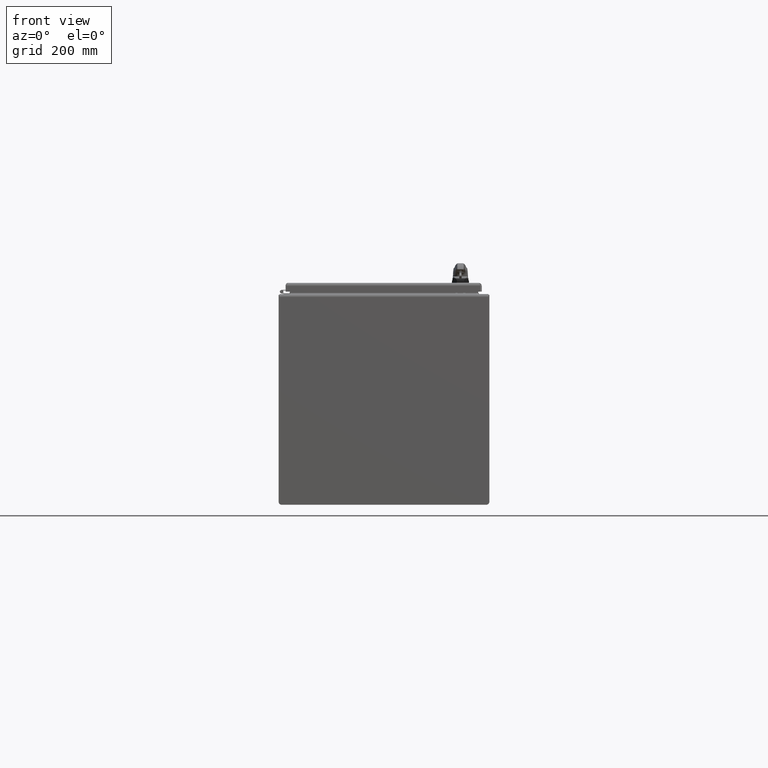
[diagram: clean part render]
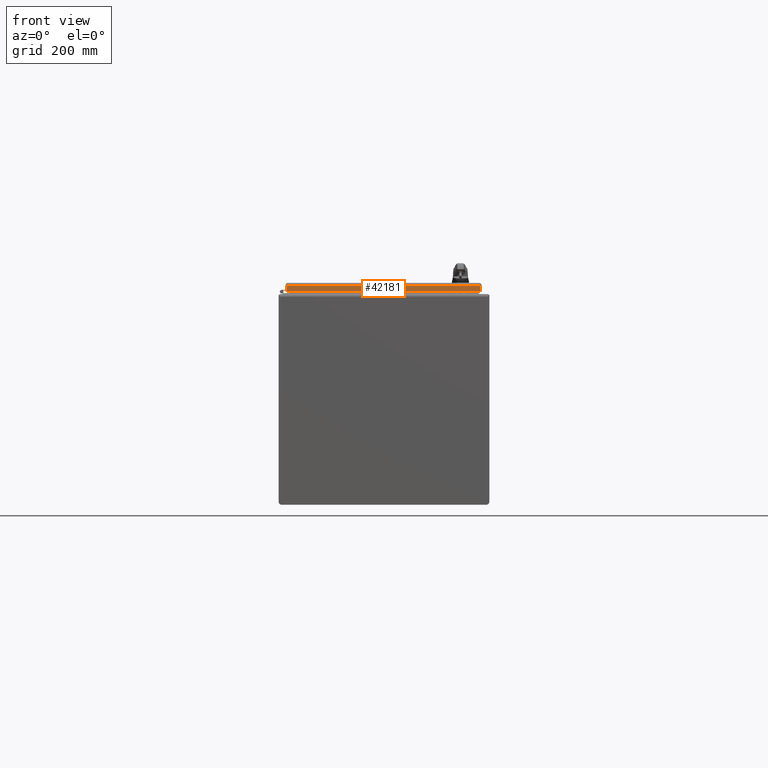
[diagram: same view with one face highlighted and labeled with its STEP entity id]
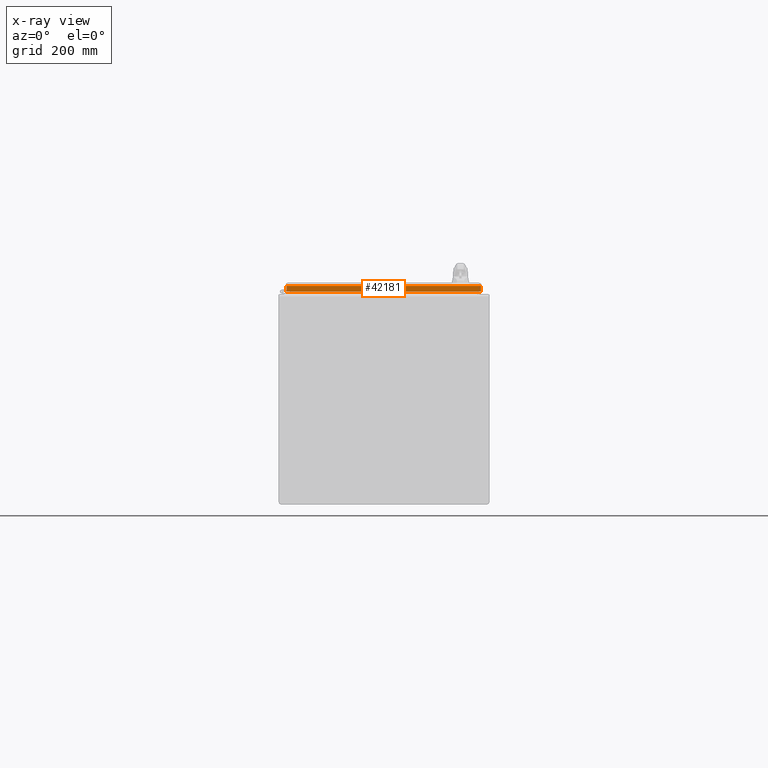
[diagram: x-ray of the same camera — body ghosted, the highlighted face saturated]
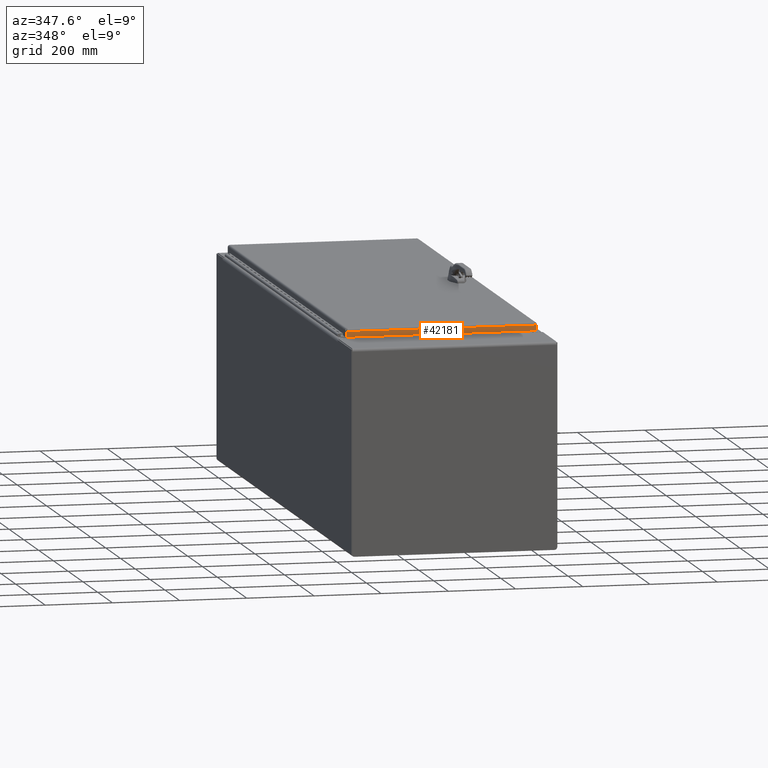
[diagram: same view with one face highlighted and labeled with its STEP entity id]
A machine part, front view. The second image highlights one B-rep face of the part: STEP entity #42181.
The next image is the same camera in x-ray: the body ghosted, the highlighted face saturated — about 0% of this face is hidden behind the body in this view.
A second angle (auxiliary view) of the same face is appended — the face is thin or edge-on in the first view.
In plain terms, the highlighted planar face has unit normal (-0, -1, 0).
Its self-contained STEP definition (entity closure, byte-faithful):
#2321=PLANE('',#45834);
#3495=FACE_OUTER_BOUND('',#6156,.T.);
#6156=EDGE_LOOP('',(#28940,#28941,#28942,#28943));
#11585=LINE('',#64425,#14877);
#11601=LINE('',#64653,#14893);
#11620=LINE('',#64904,#14912);
#11622=LINE('',#64907,#14914);
#14877=VECTOR('',#51413,0.393700787401575);
#14893=VECTOR('',#51441,0.393700787401575);
#14912=VECTOR('',#51478,0.393700787401575);
#14914=VECTOR('',#51482,0.393700787401575);
#18087=VERTEX_POINT('',#64412);
#18089=VERTEX_POINT('',#64424);
#18102=VERTEX_POINT('',#64651);
#18118=VERTEX_POINT('',#64903);
#22172=EDGE_CURVE('',#18089,#18087,#11585,.T.);
#22198=EDGE_CURVE('',#18102,#18087,#11601,.T.);
#22227=EDGE_CURVE('',#18089,#18118,#11620,.T.);
#22229=EDGE_CURVE('',#18118,#18102,#11622,.T.);
#28940=ORIENTED_EDGE('',*,*,#22198,.F.);
#28941=ORIENTED_EDGE('',*,*,#22229,.F.);
#28942=ORIENTED_EDGE('',*,*,#22227,.F.);
#28943=ORIENTED_EDGE('',*,*,#22172,.T.);
#42181=ADVANCED_FACE('',(#3495),#2321,.T.);
#45834=AXIS2_PLACEMENT_3D('',#64908,#51483,#51484);
#51413=DIRECTION('',(-1.,2.29567563473614E-15,-6.07592595728955E-29));
#51441=DIRECTION('',(5.75125893403003E-16,3.146513397746E-14,1.));
#51478=DIRECTION('',(-1.68619018490991E-29,-3.38120122885621E-14,-1.));
#51482=DIRECTION('',(-1.,2.50379632188157E-15,2.57028481300896E-18));
#51483=DIRECTION('center_axis',(-2.29567563473614E-15,-1.,3.146513397746E-14));
#51484=DIRECTION('ref_axis',(1.,-2.29567563473612E-15,4.98703036525914E-16));
#64412=CARTESIAN_POINT('',(0.115048543456054,-63.,-0.249999999999989));
#64424=CARTESIAN_POINT('',(22.322451456544,-63.,-0.250000000000008));
#64425=CARTESIAN_POINT('',(11.0795209251936,-63.,-0.250000000000008));
#64651=CARTESIAN_POINT('',(0.115048543456048,-63.,-0.896000000000004));
#64653=CARTESIAN_POINT('',(0.115048543456049,-63.,-0.458887824227169));
#64903=CARTESIAN_POINT('',(22.322451456544,-63.,-0.896000000000006));
#64904=CARTESIAN_POINT('',(22.322451456544,-63.,-0.250000000000008));
#64907=CARTESIAN_POINT('',(22.322451456544,-63.,-0.896000000000006));
#64908=CARTESIAN_POINT('Origin',(11.1172918503872,-63.,-0.34477564845434));